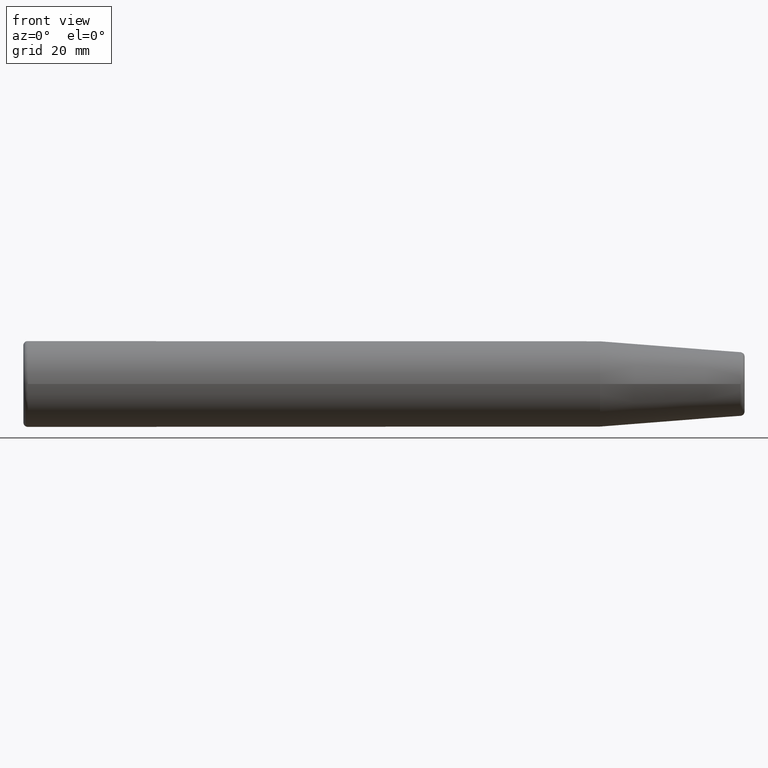
[diagram: clean part render]
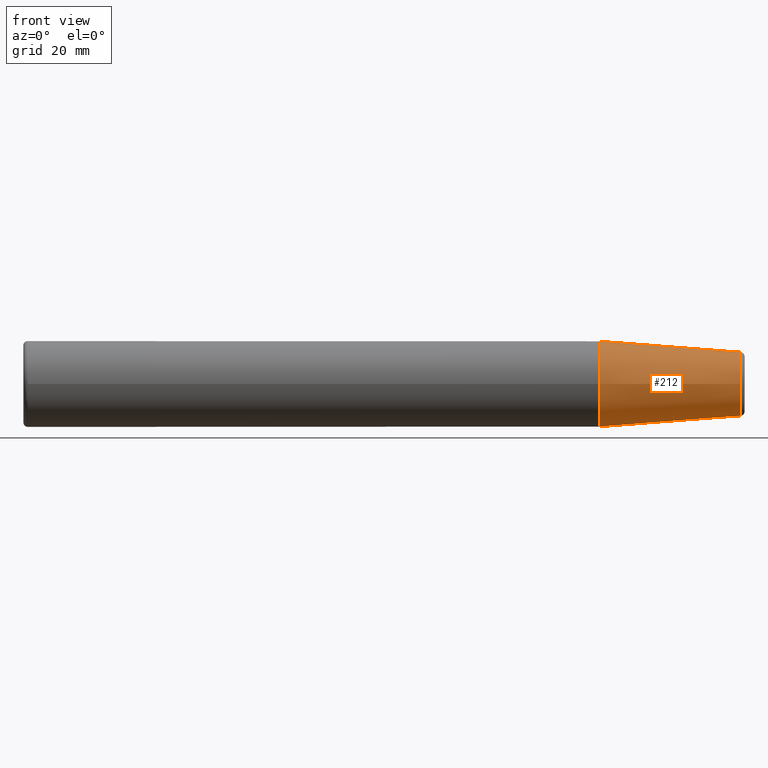
[diagram: same view with one face highlighted and labeled with its STEP entity id]
A machine part, front view. The second image highlights one B-rep face of the part: STEP entity #212.
In plain terms, the highlighted conical surface has half-angle 4.5 deg.
Its self-contained STEP definition (entity closure, byte-faithful):
#16=CONICAL_SURFACE('',#268,8.2625,0.0785398163397452);
#22=LINE('',#405,#29);
#29=VECTOR('',#341,8.2625);
#54=FACE_OUTER_BOUND('',#70,.T.);
#70=EDGE_LOOP('',(#186,#187,#188,#189,#190));
#91=CIRCLE('',#262,9.525);
#92=CIRCLE('',#265,7.07252684207492);
#93=CIRCLE('',#266,7.07252684207492);
#110=VERTEX_POINT('',#394);
#111=VERTEX_POINT('',#399);
#112=VERTEX_POINT('',#400);
#135=EDGE_CURVE('',#110,#110,#91,.T.);
#136=EDGE_CURVE('',#111,#112,#92,.T.);
#137=EDGE_CURVE('',#112,#111,#93,.T.);
#139=EDGE_CURVE('',#110,#112,#22,.T.);
#186=ORIENTED_EDGE('',*,*,#135,.F.);
#187=ORIENTED_EDGE('',*,*,#139,.T.);
#188=ORIENTED_EDGE('',*,*,#136,.F.);
#189=ORIENTED_EDGE('',*,*,#137,.F.);
#190=ORIENTED_EDGE('',*,*,#139,.F.);
#212=ADVANCED_FACE('',(#54),#16,.T.);
#262=AXIS2_PLACEMENT_3D('',#396,#327,#328);
#265=AXIS2_PLACEMENT_3D('',#401,#333,#334);
#266=AXIS2_PLACEMENT_3D('',#402,#335,#336);
#268=AXIS2_PLACEMENT_3D('',#404,#339,#340);
#327=DIRECTION('center_axis',(-1.,0.,0.));
#328=DIRECTION('ref_axis',(0.,0.,1.));
#333=DIRECTION('center_axis',(1.,0.,0.));
#334=DIRECTION('ref_axis',(0.,-1.,-3.06161699786838E-17));
#335=DIRECTION('center_axis',(1.,0.,0.));
#336=DIRECTION('ref_axis',(0.,-1.,-3.06161699786838E-17));
#339=DIRECTION('center_axis',(-1.,0.,0.));
#340=DIRECTION('ref_axis',(0.,1.,0.));
#341=DIRECTION('',(0.996917333733128,0.0784590957278453,-9.60846804471015E-18));
#394=CARTESIAN_POINT('',(-32.083166958841,-9.52499999999999,1.16647607618785E-15));
#396=CARTESIAN_POINT('Origin',(-32.083166958841,0.,0.));
#399=CARTESIAN_POINT('',(-0.921540904272156,-8.66134735903079E-16,-7.07252684207492));
#400=CARTESIAN_POINT('',(-0.921540904272156,-7.07252684207492,8.66134735903079E-16));
#401=CARTESIAN_POINT('Origin',(-0.921540904272156,0.,1.08266841987885E-15));
#402=CARTESIAN_POINT('Origin',(-0.921540904272156,0.,1.08266841987885E-15));
#404=CARTESIAN_POINT('Origin',(-16.0415834794205,0.,0.));
#405=CARTESIAN_POINT('',(-16.0415834794205,-8.2625,1.0118644177955E-15));